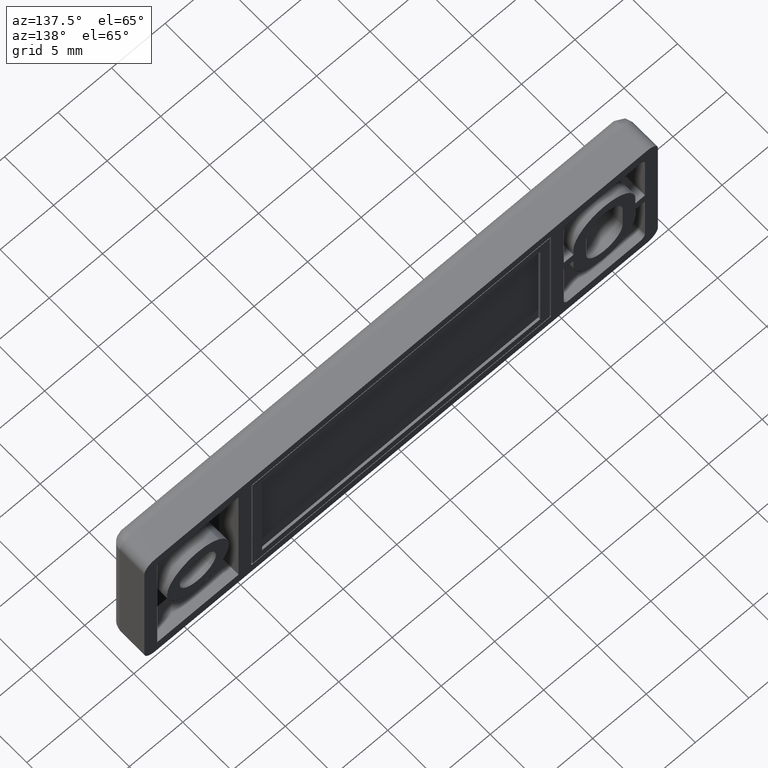
[diagram: clean part render]
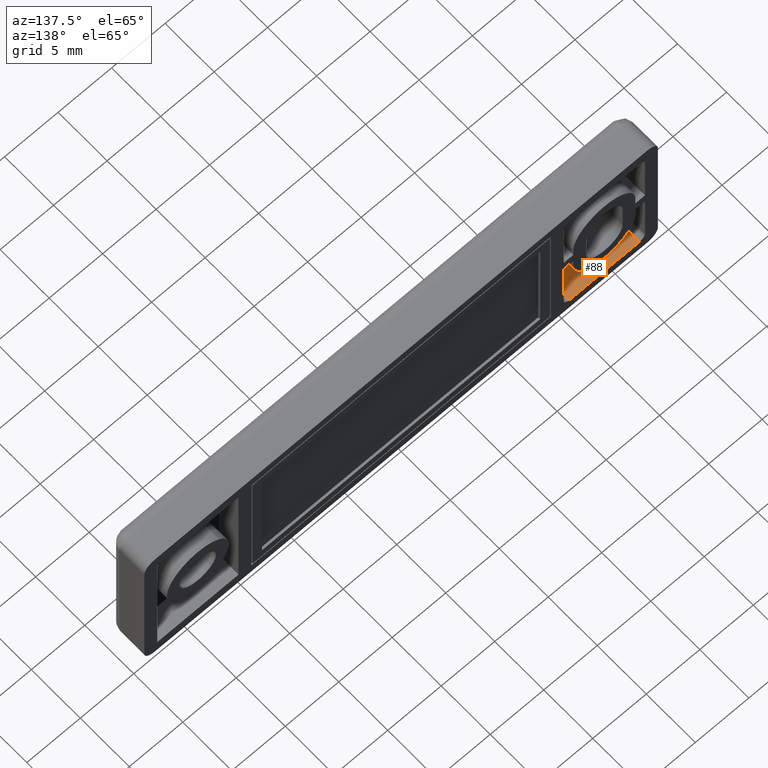
[diagram: same view with one face highlighted and labeled with its STEP entity id]
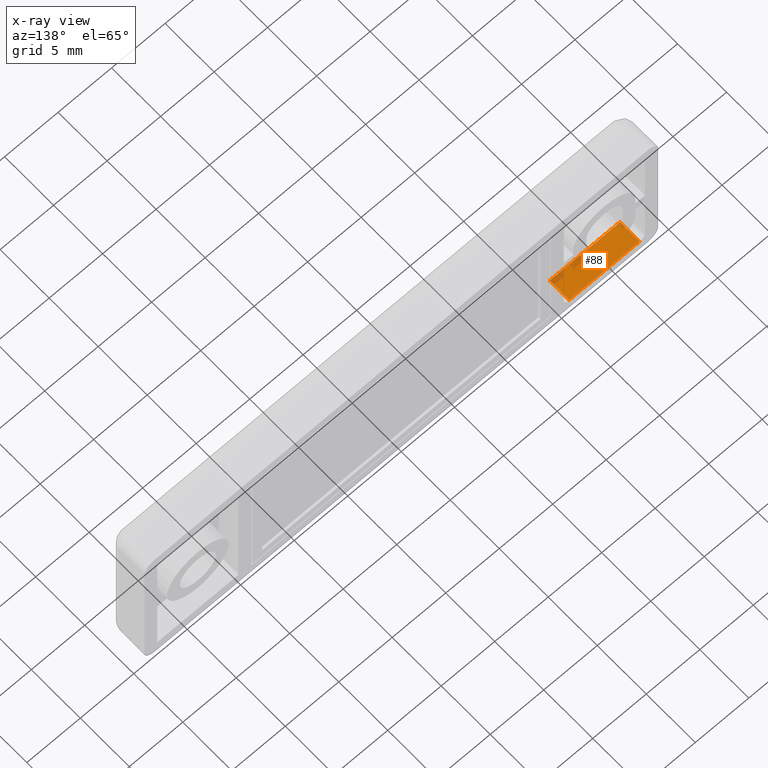
[diagram: x-ray of the same camera — body ghosted, the highlighted face saturated]
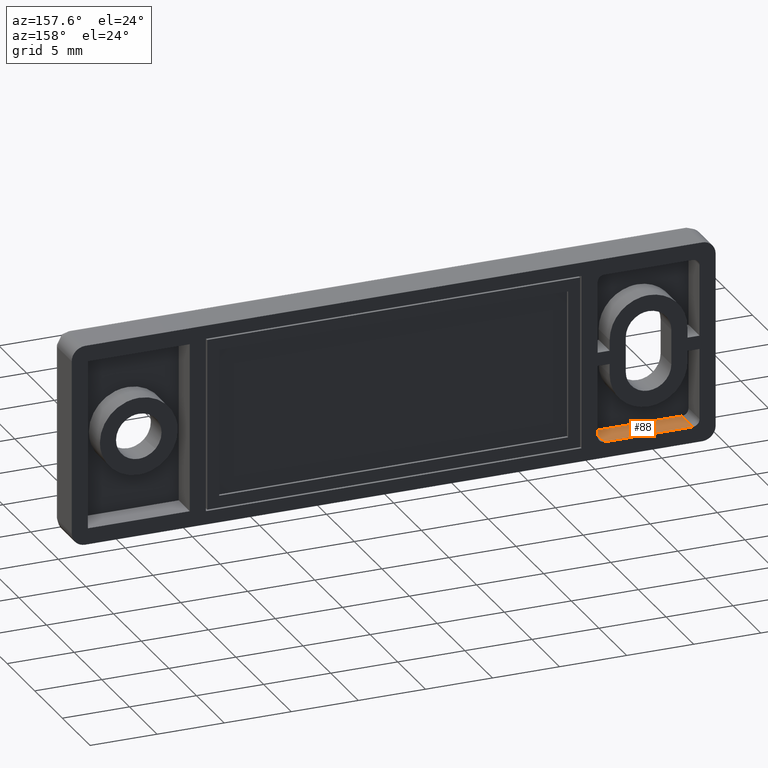
[diagram: same view with one face highlighted and labeled with its STEP entity id]
A machine part, auxiliary view. The second image highlights one B-rep face of the part: STEP entity #88.
The next image is the same camera in x-ray: the body ghosted, the highlighted face saturated — about 10% of this face is hidden behind the body in this view.
A second angle (auxiliary view) of the same face is appended — the face is thin or edge-on in the first view.
In plain terms, the highlighted planar face has unit normal (0, 0, -1).
Its self-contained STEP definition (entity closure, byte-faithful):
#88=ADVANCED_FACE('',(#283),#282,.F.);
#282=PLANE('',#1001);
#283=FACE_OUTER_BOUND('',#1002,.T.);
#998=CARTESIAN_POINT('',(-1.50400000000E+01,-2.20000000000E+00,-6.30000000000E+00));
#999=DIRECTION('',(0.00000000000E+00,0.00000000000E+00,-1.00000000000E+00));
#1000=DIRECTION('',(-1.00000000000E+00,0.00000000000E+00,0.00000000000E+00));
#1001=AXIS2_PLACEMENT_3D('',#998,#999,#1000);
#1002=EDGE_LOOP('',(#1479,#1480,#1481,#1482));
#1479=ORIENTED_EDGE('',*,*,#1900,.T.);
#1480=ORIENTED_EDGE('',*,*,#1901,.F.);
#1481=ORIENTED_EDGE('',*,*,#1902,.F.);
#1482=ORIENTED_EDGE('',*,*,#1898,.T.);
#1898=EDGE_CURVE('',#2498,#2491,#2499,.T.);
#1900=EDGE_CURVE('',#2491,#2511,#2512,.T.);
#1901=EDGE_CURVE('',#2518,#2511,#2519,.T.);
#1902=EDGE_CURVE('',#2498,#2518,#2525,.T.);
#2491=VERTEX_POINT('',#3903);
#2498=VERTEX_POINT('',#3912);
#2499=LINE('',#3913,#3914);
#2511=VERTEX_POINT('',#3924);
#2512=LINE('',#3925,#3926);
#2518=VERTEX_POINT('',#3928);
#2519=LINE('',#3929,#3930);
#2525=LINE('',#3932,#3933);
#3903=CARTESIAN_POINT('',(-1.57000000000E+01,0.00000000000E+00,-6.30000000000E+00));
#3912=CARTESIAN_POINT('',(-1.57000000000E+01,-2.00000000000E+00,-6.30000000000E+00));
#3913=CARTESIAN_POINT('',(-1.57000000000E+01,-2.00000000000E+00,-6.30000000000E+00));
#3914=VECTOR('',#3915,2.00000000000E+00);
#3915=DIRECTION('',(0.00000000000E+00,1.00000000000E+00,0.00000000000E+00));
#3924=CARTESIAN_POINT('',(-2.23000000000E+01,0.00000000000E+00,-6.30000000000E+00));
#3925=CARTESIAN_POINT('',(-1.57000000000E+01,0.00000000000E+00,-6.30000000000E+00));
#3926=VECTOR('',#3927,6.60000000000E+00);
#3927=DIRECTION('',(-1.00000000000E+00,0.00000000000E+00,0.00000000000E+00));
#3928=CARTESIAN_POINT('',(-2.23000000000E+01,-2.00000000000E+00,-6.30000000000E+00));
#3929=CARTESIAN_POINT('',(-2.23000000000E+01,-2.00000000000E+00,-6.30000000000E+00));
#3930=VECTOR('',#3931,2.00000000000E+00);
#3931=DIRECTION('',(0.00000000000E+00,1.00000000000E+00,0.00000000000E+00));
#3932=CARTESIAN_POINT('',(-1.57000000000E+01,-2.00000000000E+00,-6.30000000000E+00));
#3933=VECTOR('',#3934,6.60000000000E+00);
#3934=DIRECTION('',(-1.00000000000E+00,0.00000000000E+00,0.00000000000E+00));